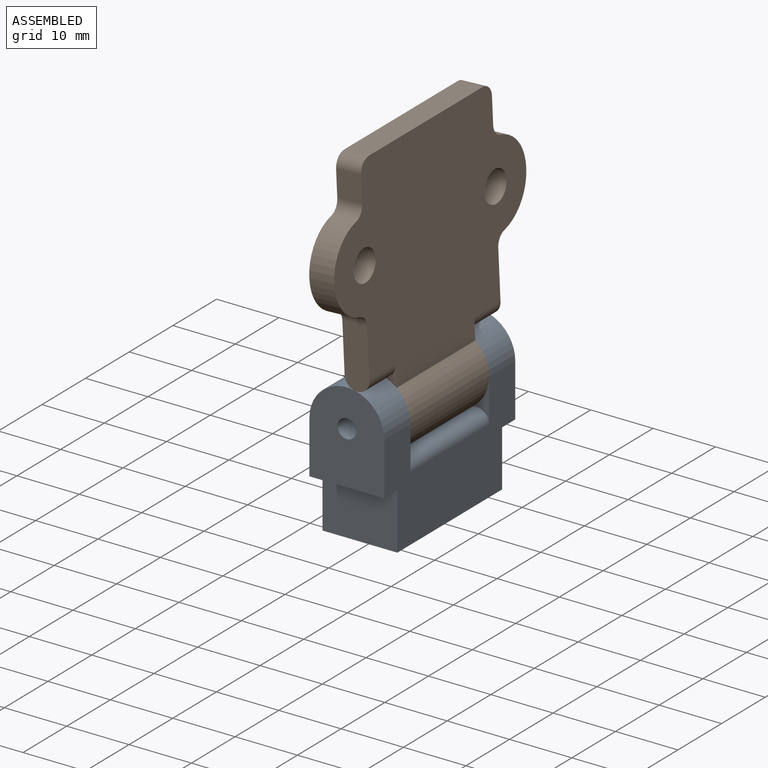
[diagram: assembled view]
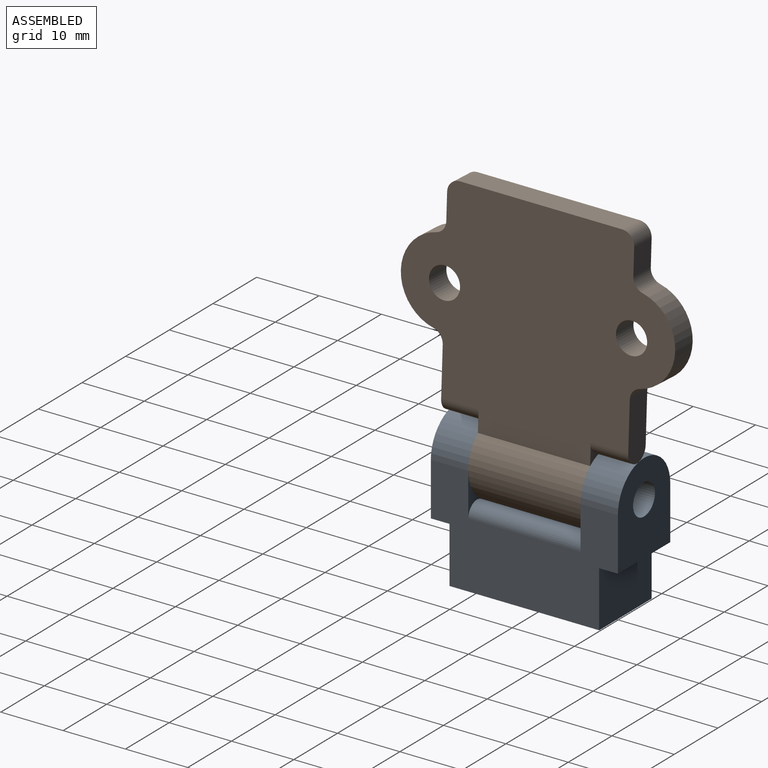
[diagram: assembled view, second angle]
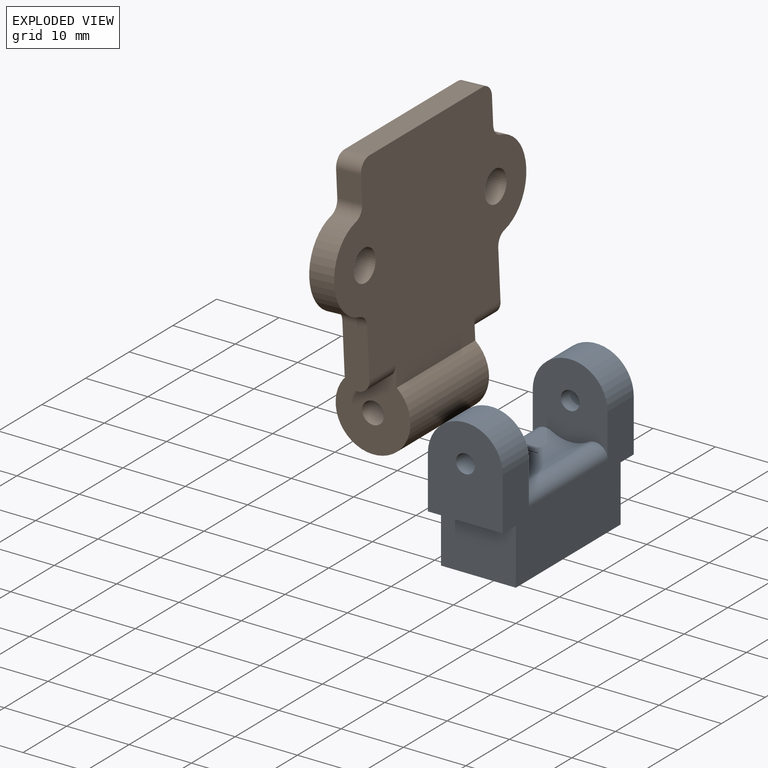
[diagram: exploded view]
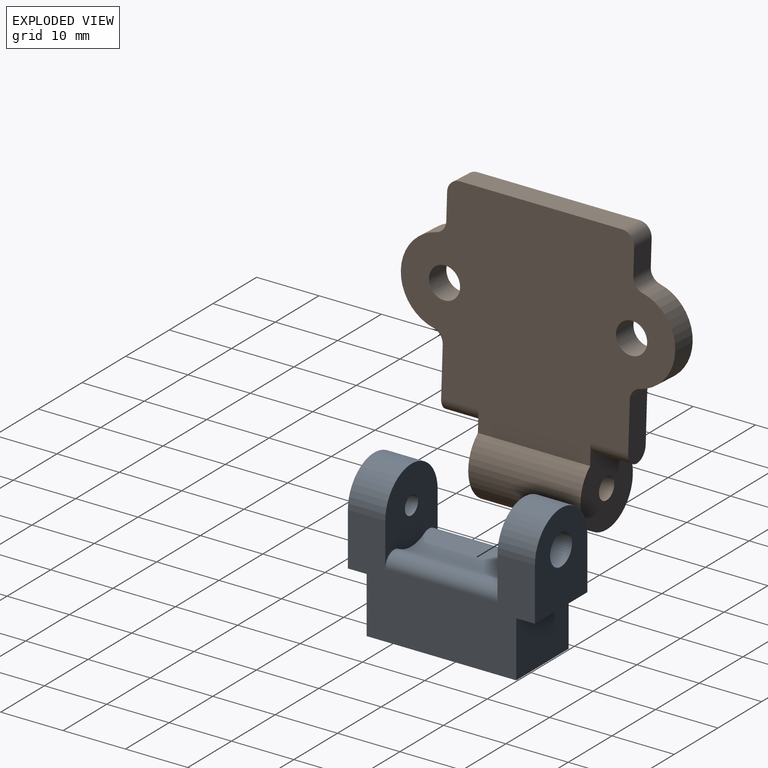
[diagram: exploded view, second angle]
ASSEMBLY  parts=2 mates=2
PART A: 24 faces, bbox 12x23.5x30 mm
  f0: plane 30x17.5mm, normal (-1,0,0), area 346.3mm2, adj f1,f2,f3,f5,f7,f10,f11,f13
  f1: plane 24x12mm, normal (0,-1,0), area 248.7mm2, adj f0,f6,f16,f18,f20,f22
  f2: plane 14.5x12mm, normal (0,0,1), area 151.5mm2, adj f0,f6,f7,f8,f23
  f3: plane 14.5x12mm, normal (0,0,-1), area 138.9mm2, adj f0,f5,f6,f14,f21
  f4: cylinder r=1.5mm len=3mm, axis (0,0,-1), area 18.8mm2, adj f10,f15
  f5: cylinder r=6mm len=12mm, axis (0,0,-1), area 113.1mm2, adj f0,f3,f6,f10
  f6: plane 30x17.5mm, normal (1,0,0), area 346.3mm2, adj f1,f2,f3,f5,f7,f10,f11,f12
  f7: cylinder r=6mm len=12mm, axis (0,0,-1), area 113.1mm2, adj f0,f2,f6,f11
  f8: cylinder r=1.5mm len=6mm, axis (0,0,-1), area 56.5mm2, adj f2,f11
  f9: cylinder r=6mm len=18mm, axis (0,0,1), area 113.1mm2, adj f10,f11,f12,f13
  f10: plane 12.93x12mm, normal (0,0,1), area 115.4mm2, adj f0,f4,f5,f6,f9,f12,f13
  f11: plane 12.93x12mm, normal (0,0,-1), area 115.4mm2, adj f0,f6,f7,f8,f9,f12,f13
  f12: cylinder r=2mm len=18mm, axis (0,0,1), area 75.4mm2, adj f6,f9,f10,f11
  f13: cylinder r=2mm len=18mm, axis (0,0,1), area 75.4mm2, adj f0,f9,f10,f11
  f14: cylinder r=2.5mm len=5mm, axis (0,0,-1), area 62.8mm2, adj f3,f15
  f15: plane 5x5mm, normal (0,0,-1), area 12.6mm2, adj f4,f14
  f16: cylinder r=2.5mm len=5mm, axis (0,-1,0), area 78.5mm2, adj f1,f17
  f17: plane 5x5mm, normal (0,-1,0), area 19.6mm2, adj f16
  f18: cylinder r=2.5mm len=5mm, axis (0,-1,0), area 78.5mm2, adj f1,f19
  f19: plane 5x5mm, normal (0,-1,0), area 19.6mm2, adj f18
  f20: plane 12x9mm, normal (0,0,-1), area 108mm2, adj f0,f1,f6,f21
  f21: plane 12x3mm, normal (0,-1,0), area 36mm2, adj f0,f3,f6,f20
  f22: plane 12x9mm, normal (0,0,1), area 108mm2, adj f0,f1,f6,f23
  f23: plane 12x3mm, normal (0,-1,0), area 36mm2, adj f0,f2,f6,f22
PART B: 23 faces, bbox 44x45.3x12 mm
  f0: plane 44x33.28mm, normal (0,0,-1), area 1092.7mm2, adj f2,f3,f4,f5,f6,f7,f8,f9
  f1: plane 44x34.8mm, normal (0,0,1), area 1120.2mm2, adj f2,f3,f4,f5,f6,f7,f8,f9
  f2: plane 26x4mm, normal (0,1,0), area 104mm2, adj f0,f1,f15,f20
  f3: plane 4.23x4mm, normal (-1,0,0), area 16.9mm2, adj f0,f1,f15,f16
  f4: cylinder r=7mm len=13.65mm, axis (0,0,-1), area 75.4mm2, adj f0,f1,f16,f17
  f5: plane 9.76x4mm, normal (-1,0,0), area 37.3mm2, adj f0,f1,f17,f21
  f6: plane 9.76x4mm, normal (1,0,0), area 37.3mm2, adj f0,f1,f18,f22
  f7: cylinder r=7mm len=13.65mm, axis (0,0,-1), area 75.4mm2, adj f0,f1,f18,f19
  f8: cylinder r=2.5mm len=5mm, axis (0,0,-1), area 62.8mm2, adj f0,f1
  f9: plane 4.23x4mm, normal (1,0,0), area 16.9mm2, adj f0,f1,f19,f20
  f10: cylinder r=2.5mm len=5mm, axis (0,0,-1), area 62.8mm2, adj f0,f1
  f11: cylinder r=6mm len=18mm, axis (-1,0,0), area 599.8mm2, adj f0,f1,f13,f14
  f12: cylinder r=1.75mm len=18mm, axis (-1,0,0), area 197.9mm2, adj f13,f14
  f13: plane 13.75x12mm, normal (1,0,0), area 106.1mm2, adj f0,f1,f11,f12,f22
  f14: plane 13.75x12mm, normal (-1,0,0), area 106.1mm2, adj f0,f1,f11,f12,f21
  f15: cylinder r=2mm len=4mm, axis (0,0,-1), area 12.6mm2, adj f0,f1,f2,f3
  f16: cylinder r=2mm len=4mm, axis (0,0,-1), area 10.8mm2, adj f0,f1,f3,f4
  f17: cylinder r=2mm len=4mm, axis (0,0,-1), area 10.8mm2, adj f0,f1,f4,f5
  f18: cylinder r=2mm len=4mm, axis (0,0,-1), area 10.8mm2, adj f0,f1,f6,f7
  f19: cylinder r=2mm len=4mm, axis (0,0,-1), area 10.8mm2, adj f0,f1,f7,f9
  f20: cylinder r=2mm len=4mm, axis (0,0,1), area 12.6mm2, adj f0,f1,f2,f9
  f21: cylinder r=2mm len=6mm, axis (1,0,0), area 37.7mm2, adj f0,f1,f5,f14
  f22: cylinder r=2mm len=6mm, axis (-1,0,0), area 37.7mm2, adj f0,f1,f6,f13
PLACE A rot(axis=(1,0,0),90deg) t=(-6,24.16,18.34)mm fixed
PLACE B rot(axis=(0.57,0.57,0.6),118.5deg) t=(-0.43,-5.84,40.11)mm
MATE cylindrical B.f11 <-> A.f4  axis (0,-1,0) through (0,0.16,30.84)mm
MATE planar B.f13 <-> A.f10  axis (0,1,0) through (-0.28,18.16,36.83)mm
